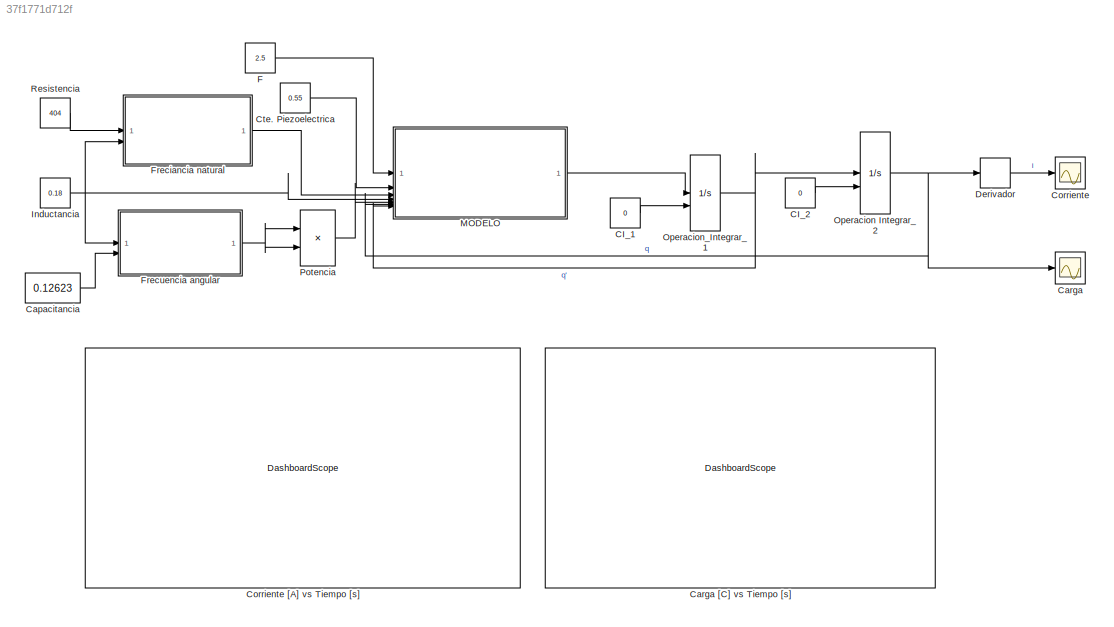
MODEL slx_37f1771d712f
KIND model
CONFIG AbsTol = auto
CONFIG EnableMultiTasking = off
CONFIG FixedStep = auto
CONFIG MaxStep = auto
CONFIG MinStep = auto
CONFIG RelTol = 1e-3
CONFIG SampleTimeConstraint = Unconstrained
CONFIG SolverName = VariableStepAuto
CONFIG StartTime = 0.0
CONFIG StopTime = 0.01
BLOCK [Constant] CI_1
  SampleTime = 0.0001
  Value = 0
BLOCK [Constant] CI_2
  SampleTime = 0.0001
  Value = 0
BLOCK [Constant] Capacitancia
  SampleTime = 0.0001
  Value = 0.12623
BLOCK [Scope] Carga
  Floating = off
  NumInputPorts = 1
  ScopeSpecificationString = Simulink.scopes.TimeScopeBlockCfg('CurrentConfiguration', extmgr.ConfigurationSet(extmgr.Configuration('Core','General UI',true),extmgr.Configuration('Core','Source UI',true),extmgr.Configuration('Sources','WiredSimulink',true,'DataLoggingVariableName','ScopeData1'),extmgr.Configuration('Visuals','Time Domain',true,'SerializedDisplays',{struct('MinYLimReal','-0.17524','MaxYLimReal','0.17538','YLab...<+1389ch>
BLOCK [DashboardScope] Carga [C] vs Tiempo [s]
BLOCK [Scope] Corriente
  Floating = off
  NumInputPorts = 1
  ScopeSpecificationString = Simulink.scopes.TimeScopeBlockCfg('CurrentConfiguration', extmgr.ConfigurationSet(extmgr.Configuration('Core','General UI',true),extmgr.Configuration('Core','Source UI',true),extmgr.Configuration('Sources','WiredSimulink',true),extmgr.Configuration('Visuals','Time Domain',true,'SerializedDisplays',{struct('MinYLimReal','-0.17503','MaxYLimReal','0.17505','YLabelReal','','MinYLimMag','0.00000','MaxY...<+1621ch>
BLOCK [DashboardScope] Corriente [A] vs Tiempo [s]
  NormalizeYAxis = on
BLOCK [Constant] Cte. Piezoelectrica
  SampleTime = 0.0001
  Value = 0.55
BLOCK [Derivative] Derivador
BLOCK [Constant] F
  SampleTime = 0.0001
  Value = 2.5
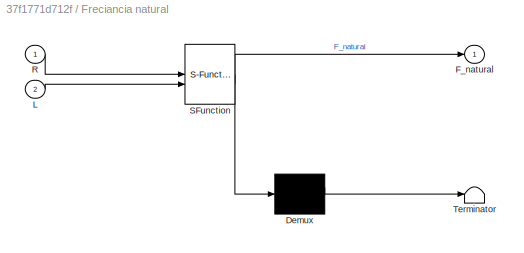
BLOCK [SubSystem] Freciancia natural 
  ErrorFcn = Stateflow.Translate.translate
  LibrarySourceBlock = simulink/User-Defined\nFunctions/MATLAB Function
  PermitHierarchicalResolution = ExplicitOnly
  SFBlockType = MATLAB Function
  TreatAsAtomicUnit = on
BLOCK [Demux] Freciancia natural / Demux 
  Outputs = 1
BLOCK [S-Function] Freciancia natural / SFunction 
  EnableBusSupport = on
  FunctionName = sf_sfun
  PortCounts = [2 2]
  SFcnIsStateOwnerBlock = off
  SFunctionDeploymentMode = off
  Tag = Stateflow S-Function 2
BLOCK [Terminator] Freciancia natural / Terminator 
BLOCK [Outport] Freciancia natural /F_natural
BLOCK [Inport] Freciancia natural /L
  Port = 2
BLOCK [Inport] Freciancia natural /R
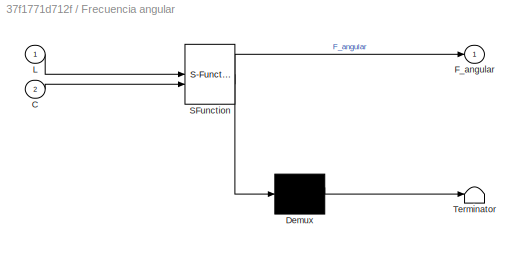
BLOCK [SubSystem] Frecuencia angular
  ErrorFcn = Stateflow.Translate.translate
  LibrarySourceBlock = simulink/User-Defined\nFunctions/MATLAB Function
  PermitHierarchicalResolution = ExplicitOnly
  SFBlockType = MATLAB Function
  TreatAsAtomicUnit = on
BLOCK [Demux] Frecuencia angular/ Demux 
  Outputs = 1
BLOCK [S-Function] Frecuencia angular/ SFunction 
  EnableBusSupport = on
  FunctionName = sf_sfun
  PortCounts = [2 2]
  SFcnIsStateOwnerBlock = off
  SFunctionDeploymentMode = off
  Tag = Stateflow S-Function 1
BLOCK [Terminator] Frecuencia angular/ Terminator 
BLOCK [Inport] Frecuencia angular/C
  Port = 2
BLOCK [Outport] Frecuencia angular/F_angular
BLOCK [Inport] Frecuencia angular/L
BLOCK [Constant] Inductancia
  SampleTime = 0.0001
  Value = 0.18
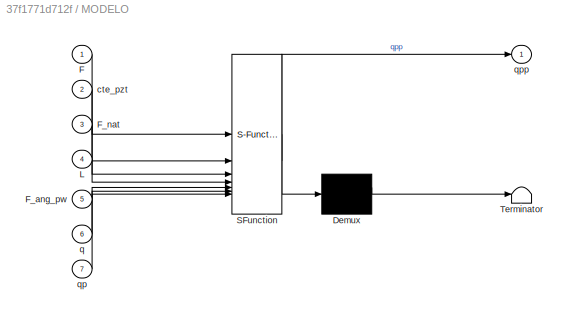
BLOCK [SubSystem] MODELO
  ErrorFcn = Stateflow.Translate.translate
  LibrarySourceBlock = simulink/User-Defined\nFunctions/MATLAB Function
  PermitHierarchicalResolution = ExplicitOnly
  SFBlockType = MATLAB Function
  TreatAsAtomicUnit = on
BLOCK [Demux] MODELO/ Demux 
  Outputs = 1
BLOCK [S-Function] MODELO/ SFunction 
  EnableBusSupport = on
  FunctionName = sf_sfun
  PortCounts = [7 2]
  SFcnIsStateOwnerBlock = off
  SFunctionDeploymentMode = off
  Tag = Stateflow S-Function 3
BLOCK [Terminator] MODELO/ Terminator 
BLOCK [Inport] MODELO/F
BLOCK [Inport] MODELO/F_ang_pw
  Port = 5
BLOCK [Inport] MODELO/F_nat
  Port = 3
BLOCK [Inport] MODELO/L
  Port = 4
BLOCK [Inport] MODELO/cte_pzt
  Port = 2
BLOCK [Inport] MODELO/q
  Port = 6
BLOCK [Inport] MODELO/qp
  Port = 7
BLOCK [Outport] MODELO/qpp
BLOCK [Integrator] Operacion Integrar_2
  InitialConditionSource = external
BLOCK [Integrator] Operacion_Integrar_1
  InitialConditionSource = external
BLOCK [Product] Potencia
BLOCK [Constant] Resistencia
  SampleTime = 0.0001
  Value = 404
LINE CI_1:1 -> Operacion_Integrar_1:2
LINE CI_2:1 -> Operacion Integrar_2:2
LINE Capacitancia:1 -> Frecuencia angular:2
LINE Cte. Piezoelectrica:1 -> MODELO:2
LINE Derivador:1 -> Corriente:1
LINE F:1 -> MODELO:1
LINE Freciancia natural :1 -> MODELO:3
NET Frecuencia angular:1 -> Potencia:1, Potencia:2
NET Inductancia:1 -> Freciancia natural :2, Frecuencia angular:1, MODELO:4
LINE MODELO:1 -> Operacion_Integrar_1:1
NET Operacion Integrar_2:1 -> Carga:1, Derivador:1, MODELO:6
NET Operacion_Integrar_1:1 -> MODELO:7, Operacion Integrar_2:1
LINE Potencia:1 -> MODELO:5
LINE Resistencia:1 -> Freciancia natural :1
note: NET lines group one-source signal fan-out (src -> all destinations, sorted); 1:1 wires keep LINE
CHART Frecuencia angular states=1 transitions=1
  STATE_LABEL 'eML_blk_kernel()'
  STATE_LABEL 'SCRIPT:\nfunction F_angular = fcn(L, C)\nF_angular = 1/sqrt(L*C);\n'
CHART Freciancia natural  states=1 transitions=1
  STATE_LABEL 'eML_blk_kernel()'
  STATE_LABEL 'SCRIPT:\nfunction F_natural = fcn(R, L)\nF_natural = R/(2*L);\n'
CHART MODELO states=1 transitions=1
  STATE_LABEL 'eML_blk_kernel()'
  STATE_LABEL 'SCRIPT:\nfunction qpp = fcn(F, cte_pzt, F_nat,L,  F_ang_pw, q, qp)\nqpp = F*cte_pzt/L - 2 * F_nat * qp - F_ang_pw * q;\n'
CHART  states=0 transitions=0
CHART  states=0 transitions=0
CHART  states=0 transitions=0
